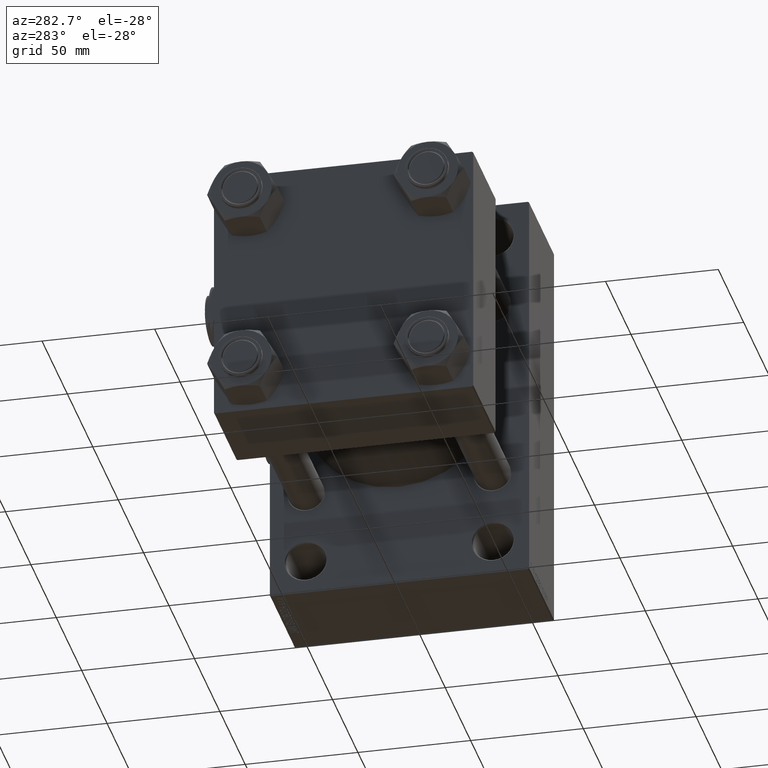
[diagram: clean part render]
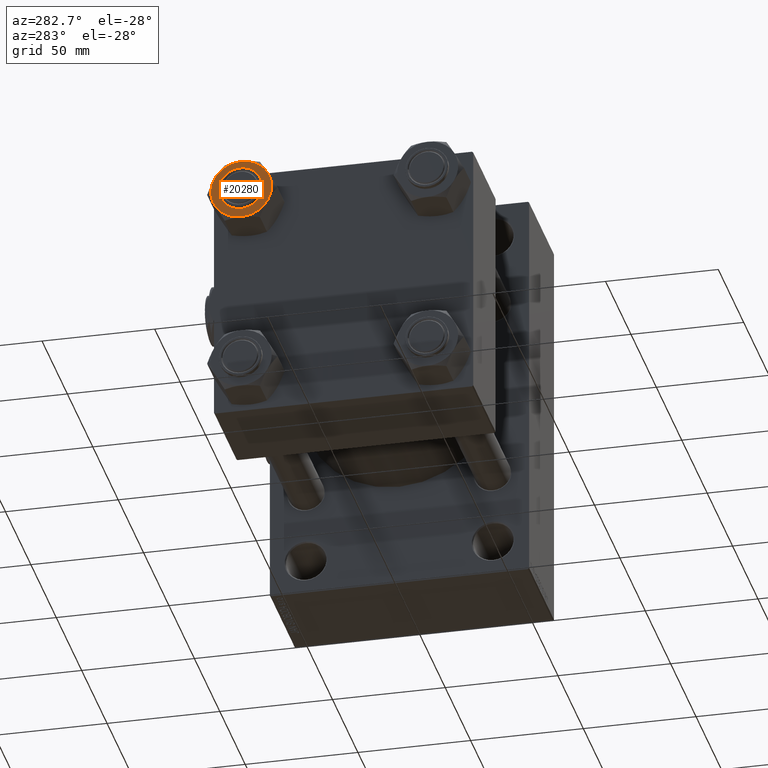
[diagram: same view with one face highlighted and labeled with its STEP entity id]
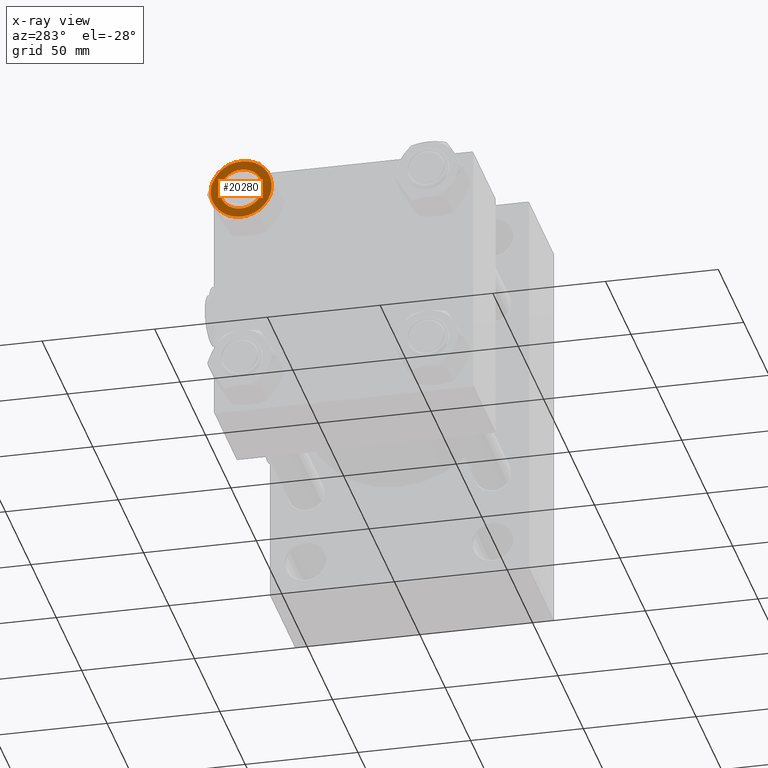
[diagram: x-ray of the same camera — body ghosted, the highlighted face saturated]
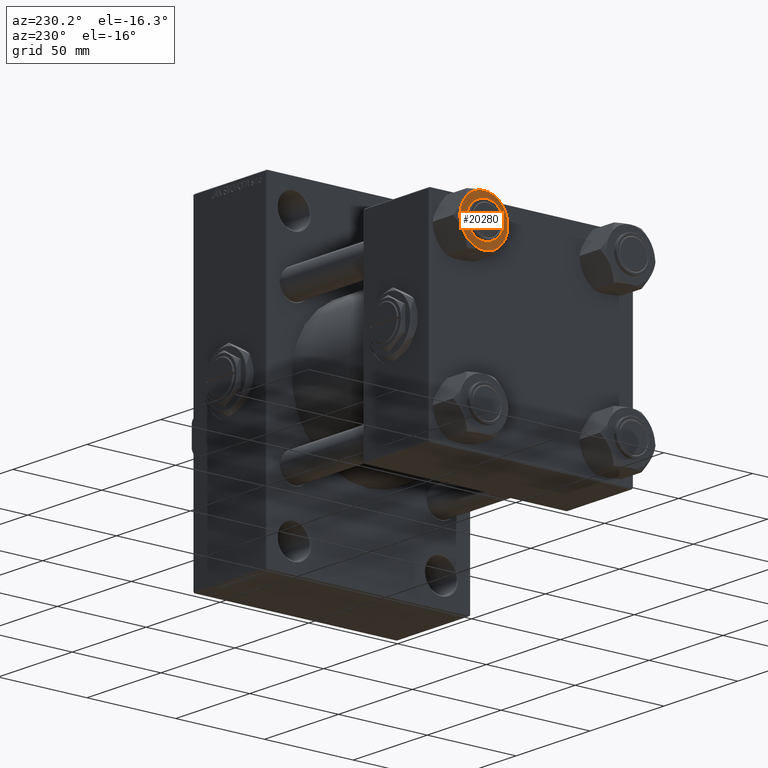
[diagram: same view with one face highlighted and labeled with its STEP entity id]
A machine part, auxiliary view. The second image highlights one B-rep face of the part: STEP entity #20280.
The next image is the same camera in x-ray: the body ghosted, the highlighted face saturated — about 0% of this face is hidden behind the body in this view.
A second angle (auxiliary view) of the same face is appended — the face is thin or edge-on in the first view.
In plain terms, the highlighted planar face has unit normal (1, 0, 0).
Its self-contained STEP definition (entity closure, byte-faithful):
#7 = CARTESIAN_POINT ( 'NONE',  ( 0.000000000000000000, 0.000000000000000000, 0.000000000000000000 ) ) ;
#437 = CIRCLE ( 'NONE', #8434, 13.52731680711293727 ) ;
#819 = DIRECTION ( 'NONE',  ( 1.000000000000000000, 0.000000000000000000, 0.000000000000000000 ) ) ;
#883 = DIRECTION ( 'NONE',  ( 0.000000000000000000, 0.000000000000000000, 1.000000000000000000 ) ) ;
#1874 = CARTESIAN_POINT ( 'NONE',  ( 11.71500000000000341, -6.763658403556471299, 0.000000000000000000 ) ) ;
#2066 = CARTESIAN_POINT ( 'NONE',  ( 9.500000000000000000, 1.163414459189985485E-15, 0.000000000000000000 ) ) ;
#2458 = DIRECTION ( 'NONE',  ( 0.000000000000000000, -0.000000000000000000, -1.000000000000000000 ) ) ;
#2528 = CARTESIAN_POINT ( 'NONE',  ( 0.000000000000000000, 0.000000000000000000, 0.000000000000000000 ) ) ;
#2924 = AXIS2_PLACEMENT_3D ( 'NONE', #7, #3288, #18642 ) ;
#3288 = DIRECTION ( 'NONE',  ( 0.000000000000000000, 0.000000000000000000, 1.000000000000000000 ) ) ;
#3373 = ORIENTED_EDGE ( 'NONE', *, *, #22912, .F. ) ;
#3463 = VERTEX_POINT ( 'NONE', #26933 ) ;
#3477 = PLANE ( 'NONE',  #27873 ) ;
#3727 = DIRECTION ( 'NONE',  ( 0.000000000000000000, 0.000000000000000000, -1.000000000000000000 ) ) ;
#3765 = EDGE_CURVE ( 'NONE', #26131, #19973, #38708, .T. ) ;
#4194 = ORIENTED_EDGE ( 'NONE', *, *, #41034, .F. ) ;
#6239 = CIRCLE ( 'NONE', #44859, 13.52731680711293727 ) ;
#6679 = CARTESIAN_POINT ( 'NONE',  ( -11.71500000000000874, -6.763658403556459753, 0.000000000000000000 ) ) ;
#6984 = FACE_BOUND ( 'NONE', #31754, .T. ) ;
#7612 = DIRECTION ( 'NONE',  ( 0.000000000000000000, 0.000000000000000000, 1.000000000000000000 ) ) ;
#8230 = VERTEX_POINT ( 'NONE', #35686 ) ;
#8434 = AXIS2_PLACEMENT_3D ( 'NONE', #2528, #33755, #49097 ) ;
#9386 = DIRECTION ( 'NONE',  ( -1.000000000000000000, 0.000000000000000000, 0.000000000000000000 ) ) ;
#9667 = ORIENTED_EDGE ( 'NONE', *, *, #3765, .F. ) ;
#9894 = VERTEX_POINT ( 'NONE', #39842 ) ;
#10644 = EDGE_LOOP ( 'NONE', ( #44941, #35735, #25892, #4194, #9667, #3373, #22152 ) ) ;
#10694 = DIRECTION ( 'NONE',  ( 0.000000000000000000, -0.000000000000000000, -1.000000000000000000 ) ) ;
#12902 = DIRECTION ( 'NONE',  ( 0.000000000000000000, -0.000000000000000000, -1.000000000000000000 ) ) ;
#14373 = CARTESIAN_POINT ( 'NONE',  ( -1.502314598737160017E-15, 13.52731680711293727, 0.000000000000000000 ) ) ;
#14702 = DIRECTION ( 'NONE',  ( -1.000000000000000000, 0.000000000000000000, 0.000000000000000000 ) ) ;
#15965 = ORIENTED_EDGE ( 'NONE', *, *, #43209, .F. ) ;
#16224 = DIRECTION ( 'NONE',  ( 1.000000000000000000, 0.000000000000000000, 0.000000000000000000 ) ) ;
#17082 = EDGE_CURVE ( 'NONE', #9894, #35187, #437, .T. ) ;
#18642 = DIRECTION ( 'NONE',  ( 1.000000000000000000, 0.000000000000000000, 0.000000000000000000 ) ) ;
#19124 = CARTESIAN_POINT ( 'NONE',  ( 0.000000000000000000, 0.000000000000000000, 0.000000000000000000 ) ) ;
#19697 = CARTESIAN_POINT ( 'NONE',  ( 13.52731680711293727, 0.000000000000000000, 0.000000000000000000 ) ) ;
#19973 = VERTEX_POINT ( 'NONE', #1874 ) ;
#19983 = CARTESIAN_POINT ( 'NONE',  ( 0.000000000000000000, 0.000000000000000000, 0.000000000000000000 ) ) ;
#20280 = ADVANCED_FACE ( 'NONE', ( #6984, #33718 ), #3477, .F. ) ;
#20610 = CARTESIAN_POINT ( 'NONE',  ( 0.000000000000000000, 0.000000000000000000, 0.000000000000000000 ) ) ;
#20816 = AXIS2_PLACEMENT_3D ( 'NONE', #39175, #883, #16224 ) ;
#21880 = DIRECTION ( 'NONE',  ( -1.000000000000000000, 0.000000000000000000, -0.000000000000000000 ) ) ;
#22152 = ORIENTED_EDGE ( 'NONE', *, *, #34575, .T. ) ;
#22428 = AXIS2_PLACEMENT_3D ( 'NONE', #24001, #7612, #819 ) ;
#22527 = DIRECTION ( 'NONE',  ( 0.000000000000000000, -0.000000000000000000, -1.000000000000000000 ) ) ;
#22780 = EDGE_CURVE ( 'NONE', #35187, #8230, #27193, .T. ) ;
#22912 = EDGE_CURVE ( 'NONE', #30760, #26131, #6239, .T. ) ;
#24001 = CARTESIAN_POINT ( 'NONE',  ( 0.000000000000000000, 0.000000000000000000, 0.000000000000000000 ) ) ;
#25892 = ORIENTED_EDGE ( 'NONE', *, *, #17082, .F. ) ;
#26131 = VERTEX_POINT ( 'NONE', #19697 ) ;
#26933 = CARTESIAN_POINT ( 'NONE',  ( -9.500000000000000000, 0.000000000000000000, 0.000000000000000000 ) ) ;
#27193 = CIRCLE ( 'NONE', #30382, 13.52731680711293727 ) ;
#27269 = CIRCLE ( 'NONE', #20816, 9.500000000000000000 ) ;
#27873 = AXIS2_PLACEMENT_3D ( 'NONE', #49545, #3727, #21880 ) ;
#30382 = AXIS2_PLACEMENT_3D ( 'NONE', #19124, #38027, #49582 ) ;
#30760 = VERTEX_POINT ( 'NONE', #36124 ) ;
#31754 = EDGE_LOOP ( 'NONE', ( #43182, #15965 ) ) ;
#32947 = DIRECTION ( 'NONE',  ( -1.000000000000000000, 0.000000000000000000, 0.000000000000000000 ) ) ;
#33044 = CIRCLE ( 'NONE', #49089, 13.52731680711293727 ) ;
#33718 = FACE_OUTER_BOUND ( 'NONE', #10644, .T. ) ;
#33755 = DIRECTION ( 'NONE',  ( 0.000000000000000000, -0.000000000000000000, -1.000000000000000000 ) ) ;
#34366 = CARTESIAN_POINT ( 'NONE',  ( 0.000000000000000000, 0.000000000000000000, 0.000000000000000000 ) ) ;
#34575 = EDGE_CURVE ( 'NONE', #30760, #44196, #41529, .T. ) ;
#35187 = VERTEX_POINT ( 'NONE', #6679 ) ;
#35686 = CARTESIAN_POINT ( 'NONE',  ( -11.71500000000000341, 6.763658403556467746, 0.000000000000000000 ) ) ;
#35735 = ORIENTED_EDGE ( 'NONE', *, *, #22780, .F. ) ;
#36124 = CARTESIAN_POINT ( 'NONE',  ( 11.71500000000000519, 6.763658403556469523, 0.000000000000000000 ) ) ;
#36591 = VERTEX_POINT ( 'NONE', #2066 ) ;
#38027 = DIRECTION ( 'NONE',  ( 0.000000000000000000, -0.000000000000000000, -1.000000000000000000 ) ) ;
#38708 = CIRCLE ( 'NONE', #48344, 13.52731680711293727 ) ;
#39175 = CARTESIAN_POINT ( 'NONE',  ( 0.000000000000000000, 0.000000000000000000, 0.000000000000000000 ) ) ;
#39842 = CARTESIAN_POINT ( 'NONE',  ( 3.004629197474319246E-15, -13.52731680711293727, 0.000000000000000000 ) ) ;
#41034 = EDGE_CURVE ( 'NONE', #19973, #9894, #46482, .T. ) ;
#41438 = DIRECTION ( 'NONE',  ( -1.000000000000000000, 0.000000000000000000, 0.000000000000000000 ) ) ;
#41529 = CIRCLE ( 'NONE', #2924, 13.52731680711293727 ) ;
#42858 = EDGE_CURVE ( 'NONE', #3463, #36591, #27269, .T. ) ;
#43182 = ORIENTED_EDGE ( 'NONE', *, *, #42858, .F. ) ;
#43209 = EDGE_CURVE ( 'NONE', #36591, #3463, #44141, .T. ) ;
#44141 = CIRCLE ( 'NONE', #22428, 9.500000000000000000 ) ;
#44196 = VERTEX_POINT ( 'NONE', #14373 ) ;
#44859 = AXIS2_PLACEMENT_3D ( 'NONE', #20610, #2458, #32947 ) ;
#44941 = ORIENTED_EDGE ( 'NONE', *, *, #46545, .F. ) ;
#46482 = CIRCLE ( 'NONE', #47270, 13.52731680711293727 ) ;
#46545 = EDGE_CURVE ( 'NONE', #8230, #44196, #33044, .T. ) ;
#47270 = AXIS2_PLACEMENT_3D ( 'NONE', #19983, #12902, #9386 ) ;
#48344 = AXIS2_PLACEMENT_3D ( 'NONE', #34366, #22527, #14702 ) ;
#49089 = AXIS2_PLACEMENT_3D ( 'NONE', #49475, #10694, #41438 ) ;
#49097 = DIRECTION ( 'NONE',  ( -1.000000000000000000, 0.000000000000000000, 0.000000000000000000 ) ) ;
#49475 = CARTESIAN_POINT ( 'NONE',  ( 0.000000000000000000, 0.000000000000000000, 0.000000000000000000 ) ) ;
#49545 = CARTESIAN_POINT ( 'NONE',  ( 0.000000000000000000, 0.000000000000000000, 0.000000000000000000 ) ) ;
#49582 = DIRECTION ( 'NONE',  ( -1.000000000000000000, 0.000000000000000000, 0.000000000000000000 ) ) ;